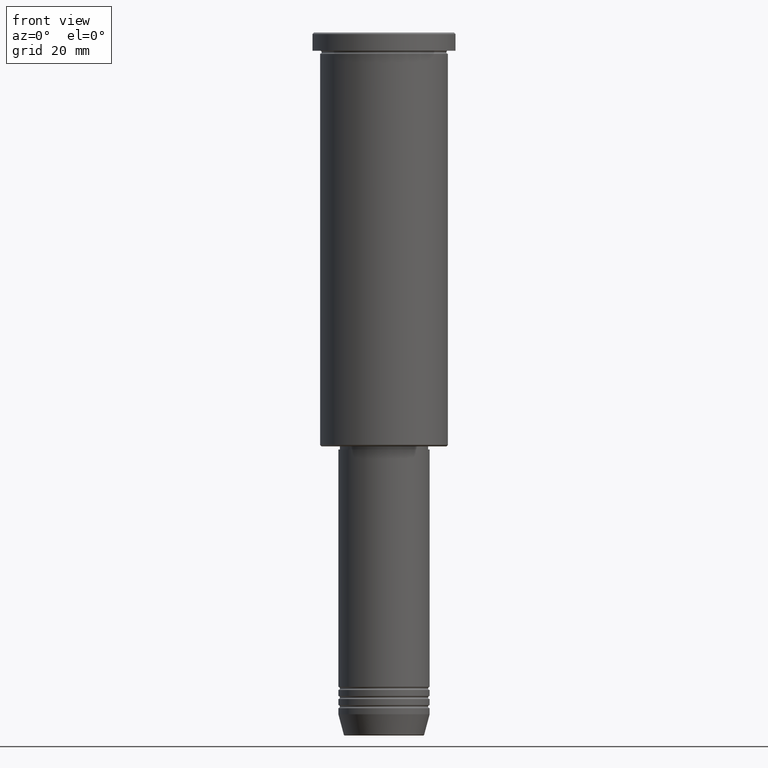
[diagram: clean part render]
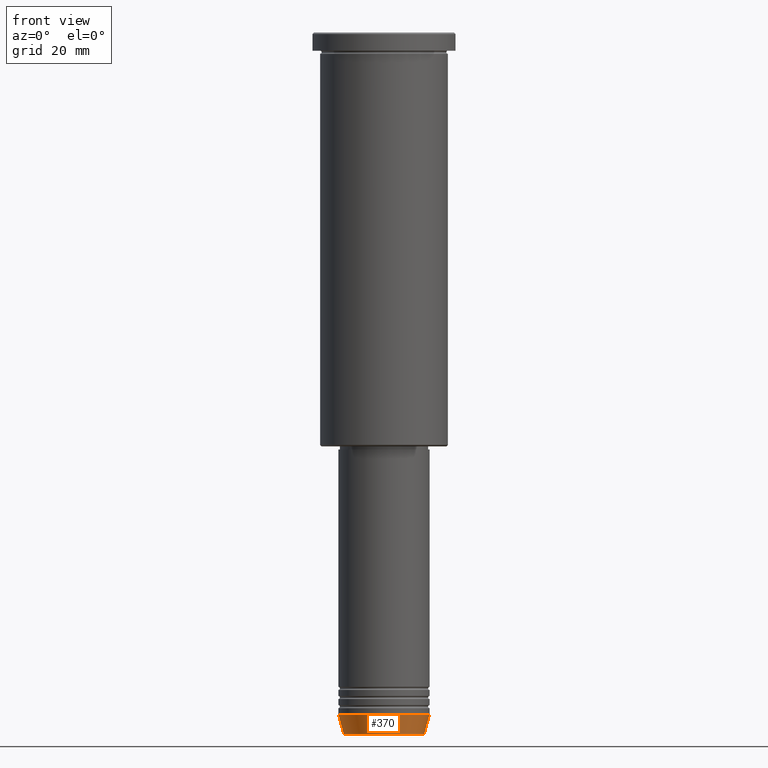
[diagram: same view with one face highlighted and labeled with its STEP entity id]
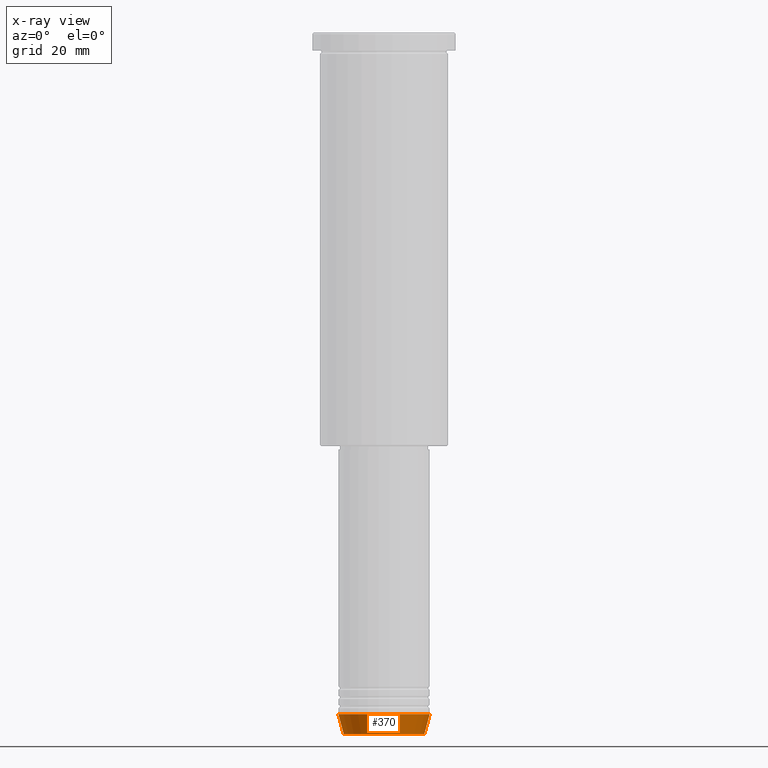
[diagram: x-ray of the same camera — body ghosted, the highlighted face saturated]
A machine part, front view. The second image highlights one B-rep face of the part: STEP entity #370.
The next image is the same camera in x-ray: the body ghosted, the highlighted face saturated — about 0% of this face is hidden behind the body in this view.
In plain terms, the highlighted conical surface has half-angle 15 deg.
Its self-contained STEP definition (entity closure, byte-faithful):
#18 = CARTESIAN_POINT ( 'NONE',  ( -15.00000000000000000, 1.836970198721029589E-15, -224.0000000000000000 ) ) ;
#70 = CARTESIAN_POINT ( 'NONE',  ( -13.22365507213719305, 1.728200442216588583E-15, -230.6294095225512422 ) ) ;
#82 = AXIS2_PLACEMENT_3D ( 'NONE', #456, #624, #545 ) ;
#91 = ORIENTED_EDGE ( 'NONE', *, *, #1057, .F. ) ;
#95 = DIRECTION ( 'NONE',  ( -0.000000000000000000, -0.000000000000000000, 1.000000000000000000 ) ) ;
#187 = CARTESIAN_POINT ( 'NONE',  ( 13.22365507213719305, 0.000000000000000000, -230.6294095225512422 ) ) ;
#209 = DIRECTION ( 'NONE',  ( -0.000000000000000000, -0.000000000000000000, 1.000000000000000000 ) ) ;
#269 = VERTEX_POINT ( 'NONE', #70 ) ;
#341 = LINE ( 'NONE', #780, #447 ) ;
#347 = ORIENTED_EDGE ( 'NONE', *, *, #678, .T. ) ;
#370 = ADVANCED_FACE ( 'NONE', ( #819 ), #993, .T. ) ;
#390 = CARTESIAN_POINT ( 'NONE',  ( 0.000000000000000000, 0.000000000000000000, -230.6294095225512422 ) ) ;
#414 = EDGE_CURVE ( 'NONE', #885, #449, #896, .T. ) ;
#447 = VECTOR ( 'NONE', #509, 1000.000000000000000 ) ;
#449 = VERTEX_POINT ( 'NONE', #834 ) ;
#453 = EDGE_CURVE ( 'NONE', #269, #769, #1013, .T. ) ;
#456 = CARTESIAN_POINT ( 'NONE',  ( 0.000000000000000000, 0.000000000000000000, -224.0000000000000000 ) ) ;
#465 = DIRECTION ( 'NONE',  ( 1.000000000000000000, 0.000000000000000000, 0.000000000000000000 ) ) ;
#509 = DIRECTION ( 'NONE',  ( 0.2588190451025213501, 0.000000000000000000, 0.9659258262890680902 ) ) ;
#545 = DIRECTION ( 'NONE',  ( 1.000000000000000000, 0.000000000000000000, 0.000000000000000000 ) ) ;
#558 = AXIS2_PLACEMENT_3D ( 'NONE', #910, #95, #465 ) ;
#589 = EDGE_LOOP ( 'NONE', ( #91, #1107, #347, #842 ) ) ;
#624 = DIRECTION ( 'NONE',  ( -0.000000000000000000, -0.000000000000000000, 1.000000000000000000 ) ) ;
#628 = CARTESIAN_POINT ( 'NONE',  ( -15.00000000000000000, 1.836970198721029589E-15, -224.0000000000000000 ) ) ;
#678 = EDGE_CURVE ( 'NONE', #769, #449, #341, .T. ) ;
#769 = VERTEX_POINT ( 'NONE', #187 ) ;
#780 = CARTESIAN_POINT ( 'NONE',  ( 15.00000000000000000, 0.000000000000000000, -224.0000000000000000 ) ) ;
#819 = FACE_OUTER_BOUND ( 'NONE', #589, .T. ) ;
#834 = CARTESIAN_POINT ( 'NONE',  ( 15.00000000000000000, 0.000000000000000000, -224.0000000000000000 ) ) ;
#842 = ORIENTED_EDGE ( 'NONE', *, *, #414, .F. ) ;
#843 = AXIS2_PLACEMENT_3D ( 'NONE', #390, #209, #949 ) ;
#885 = VERTEX_POINT ( 'NONE', #18 ) ;
#887 = DIRECTION ( 'NONE',  ( -0.2588190451025213501, 3.169619151431772337E-17, 0.9659258262890680902 ) ) ;
#896 = CIRCLE ( 'NONE', #558, 15.00000000000000000 ) ;
#910 = CARTESIAN_POINT ( 'NONE',  ( 0.000000000000000000, 0.000000000000000000, -224.0000000000000000 ) ) ;
#949 = DIRECTION ( 'NONE',  ( 1.000000000000000000, 0.000000000000000000, 0.000000000000000000 ) ) ;
#993 = CONICAL_SURFACE ( 'NONE', #82, 15.00000000000000000, 0.2617993877991500740 ) ;
#1000 = VECTOR ( 'NONE', #887, 1000.000000000000000 ) ;
#1013 = CIRCLE ( 'NONE', #843, 13.22365507213719305 ) ;
#1057 = EDGE_CURVE ( 'NONE', #269, #885, #1161, .T. ) ;
#1107 = ORIENTED_EDGE ( 'NONE', *, *, #453, .T. ) ;
#1161 = LINE ( 'NONE', #628, #1000 ) ;